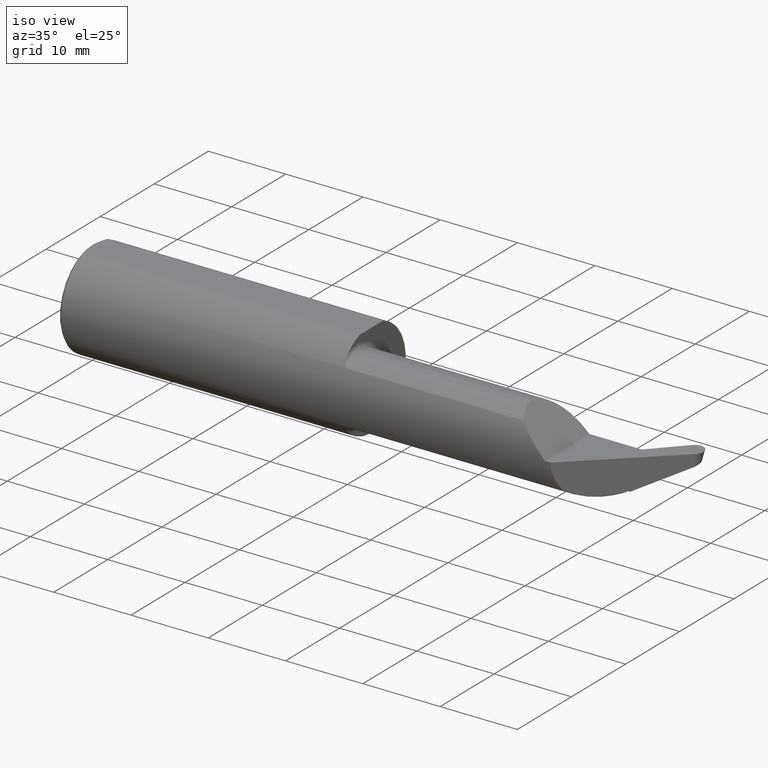
[diagram: clean part render]
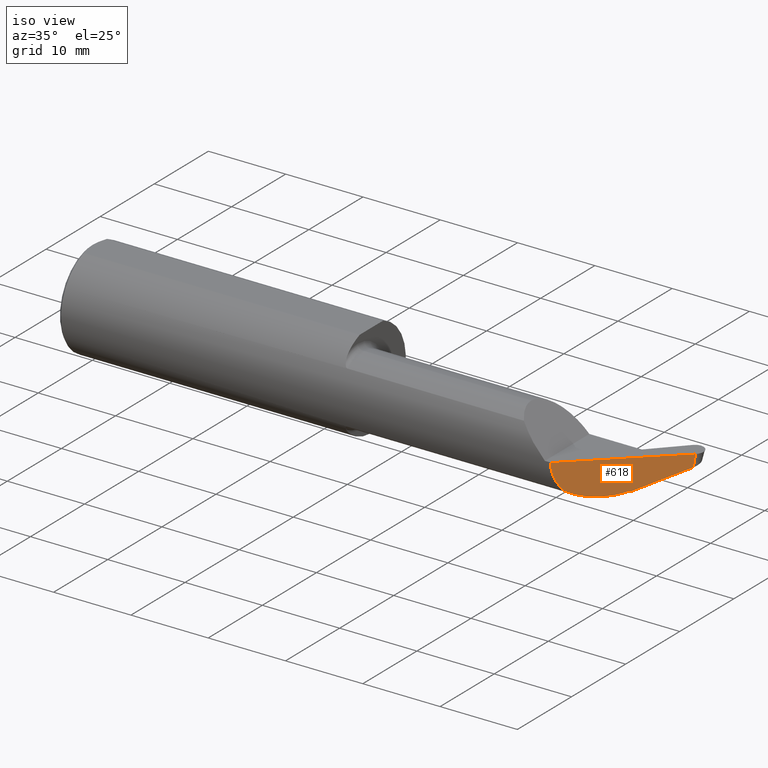
[diagram: same view with one face highlighted and labeled with its STEP entity id]
A machine part, iso view. The second image highlights one B-rep face of the part: STEP entity #618.
In plain terms, the highlighted planar face has unit normal (-0.6816, 0.7309, 0.0349).
Its self-contained STEP definition (entity closure, byte-faithful):
#2 = CARTESIAN_POINT ( 'NONE',  ( 2.508211166450760476, -0.2498500000000000443, -0.04776250763339680988 ) ) ;
#34 = ORIENTED_EDGE ( 'NONE', *, *, #817, .T. ) ;
#43 = EDGE_CURVE ( 'NONE', #307, #499, #77, .T. ) ;
#55 = CARTESIAN_POINT ( 'NONE',  ( 2.747209855509363585, -0.02183442268399109210, -0.1555299639813814694 ) ) ;
#60 = CARTESIAN_POINT ( 'NONE',  ( 2.691783994665847057, -0.07263796445558691472, -0.1739999999999993219 ) ) ;
#77 = B_SPLINE_CURVE_WITH_KNOTS ( 'NONE', 3,
 ( #193, #722, #447, #139 ),
 .UNSPECIFIED., .F., .F.,
 ( 4, 4 ),
 ( 3.126453557828127840E-07, 0.0001706435259610475277 ),
 .UNSPECIFIED. ) ;
#99 = CARTESIAN_POINT ( 'NONE',  ( 2.545554631339530971, -0.2109115923885839516, -0.1339452227446421839 ) ) ;
#104 = PLANE ( 'NONE',  #309 ) ;
#111 = DIRECTION ( 'NONE',  ( -0.7313537016191660189, -0.6819983600625031395, 0.000000000000000000 ) ) ;
#134 = CARTESIAN_POINT ( 'NONE',  ( 2.720501376327327581, -0.04615791066147757749, -0.1677308988258701672 ) ) ;
#139 = CARTESIAN_POINT ( 'NONE',  ( 2.751504638639513445, -0.01768368298314663273, -0.1585832699261198464 ) ) ;
#162 = CARTESIAN_POINT ( 'NONE',  ( 2.913796884223085026, 0.1298489285363519097, -0.07884494127364100047 ) ) ;
#163 = FACE_OUTER_BOUND ( 'NONE', #409, .T. ) ;
#191 = EDGE_CURVE ( 'NONE', #414, #477, #533, .T. ) ;
#193 = CARTESIAN_POINT ( 'NONE',  ( 2.747209855509363585, -0.02183442268399109210, -0.1555299639813814694 ) ) ;
#194 = EDGE_CURVE ( 'NONE', #759, #499, #600, .T. ) ;
#199 = CARTESIAN_POINT ( 'NONE',  ( 2.662602659211939837, -0.09984999999999999432, -0.1739999999999993496 ) ) ;
#215 = ORIENTED_EDGE ( 'NONE', *, *, #43, .T. ) ;
#237 = EDGE_CURVE ( 'NONE', #724, #477, #613, .T. ) ;
#248 = CARTESIAN_POINT ( 'NONE',  ( 2.948155640226707508, 0.1610829347179065230, -0.06196360619533394093 ) ) ;
#253 = ORIENTED_EDGE ( 'NONE', *, *, #194, .F. ) ;
#266 = CARTESIAN_POINT ( 'NONE',  ( 2.662602659211939837, -0.09984999999999999432, -0.1739999999999993496 ) ) ;
#307 = VERTEX_POINT ( 'NONE', #55 ) ;
#309 = AXIS2_PLACEMENT_3D ( 'NONE', #803, #555, #111 ) ;
#320 = CARTESIAN_POINT ( 'NONE',  ( 2.747209855509363585, -0.02183442268399109210, -0.1555299639813814694 ) ) ;
#321 = VECTOR ( 'NONE', #526, 39.37007874015748854 ) ;
#334 = VECTOR ( 'NONE', #469, 39.37007874015748143 ) ;
#382 = VERTEX_POINT ( 'NONE', #199 ) ;
#384 = CARTESIAN_POINT ( 'NONE',  ( 2.578040489233798471, -0.1793692571805432789, -0.1600987644990803094 ) ) ;
#409 = EDGE_LOOP ( 'NONE', ( #253, #780, #497, #462, #34, #735, #215 ) ) ;
#414 = VERTEX_POINT ( 'NONE', #725 ) ;
#419 = CARTESIAN_POINT ( 'NONE',  ( 2.510656778664930311, -0.2498500000000000998, 9.070589041463373428E-17 ) ) ;
#434 = CARTESIAN_POINT ( 'NONE',  ( 2.618662664960786923, -0.1408247075240024737, -0.1739999999999994051 ) ) ;
#436 = CARTESIAN_POINT ( 'NONE',  ( 2.510656778664930311, -0.2498500000000000998, 9.070589041463373428E-17 ) ) ;
#446 = CARTESIAN_POINT ( 'NONE',  ( 2.662602659211939837, -0.09984999999999999432, -0.1739999999999993496 ) ) ;
#447 = CARTESIAN_POINT ( 'NONE',  ( 2.750071417839318855, -0.01906857296610130204, -0.1575698277670850023 ) ) ;
#454 = CARTESIAN_POINT ( 'NONE',  ( 2.950997559189900699, 0.1627468516434981416, -0.04130907079682625410 ) ) ;
#462 = ORIENTED_EDGE ( 'NONE', *, *, #237, .F. ) ;
#469 = DIRECTION ( 'NONE',  ( -0.6954206866754735206, -0.6321757989175361692, -0.3416779592054307590 ) ) ;
#477 = VERTEX_POINT ( 'NONE', #419 ) ;
#497 = ORIENTED_EDGE ( 'NONE', *, *, #191, .T. ) ;
#499 = VERTEX_POINT ( 'NONE', #622 ) ;
#526 = DIRECTION ( 'NONE',  ( -0.7313537016191662410, -0.6819983600625029174, 0.000000000000000000 ) ) ;
#533 = LINE ( 'NONE', #798, #321 ) ;
#552 =( BOUNDED_CURVE ( )  B_SPLINE_CURVE ( 3, ( #446, #60, #134, #320 ),
 .UNSPECIFIED., .F., .T. ) 
 B_SPLINE_CURVE_WITH_KNOTS ( ( 4, 4 ),
 ( 1.523084436873744618, 1.988020202971616746 ),
 .UNSPECIFIED. ) 
 CURVE ( )  GEOMETRIC_REPRESENTATION_ITEM ( )  RATIONAL_B_SPLINE_CURVE ( ( 1.000000000000000000, 0.9820672057869661575, 0.9820672057869661575, 1.000000000000000000 ) ) 
 REPRESENTATION_ITEM ( '' )  );
#555 = DIRECTION ( 'NONE',  ( -0.6815829050885324758, 0.7309081807046557966, 0.03489949670248780611 ) ) ;
#582 = CARTESIAN_POINT ( 'NONE',  ( 2.948155640226707508, 0.1610829347179065230, -0.06196360619533394093 ) ) ;
#587 = CARTESIAN_POINT ( 'NONE',  ( 2.953839478153090781, 0.1644107685690906762, -0.02065453539841306460 ) ) ;
#600 = LINE ( 'NONE', #162, #334 ) ;
#613 =( BOUNDED_CURVE ( )  B_SPLINE_CURVE ( 3, ( #630, #822, #2, #436 ),
 .UNSPECIFIED., .F., .T. ) 
 B_SPLINE_CURVE_WITH_KNOTS ( ( 4, 4 ),
 ( 5.765083885558844656, 6.330897197100739504 ),
 .UNSPECIFIED. ) 
 CURVE ( )  GEOMETRIC_REPRESENTATION_ITEM ( )  RATIONAL_B_SPLINE_CURVE ( ( 1.000000000000000000, 0.9734987392630297665, 0.9734987392630297665, 1.000000000000000000 ) ) 
 REPRESENTATION_ITEM ( '' )  );
#618 = ADVANCED_FACE ( 'NONE', ( #163 ), #104, .F. ) ;
#622 = CARTESIAN_POINT ( 'NONE',  ( 2.751504638639513445, -0.01768368298314663273, -0.1585832699261198464 ) ) ;
#630 = CARTESIAN_POINT ( 'NONE',  ( 2.545554631339530971, -0.2109115923885839516, -0.1339452227446421839 ) ) ;
#642 = CARTESIAN_POINT ( 'NONE',  ( 2.956681397116279975, 0.1660746854946830720, 0.000000000000000000 ) ) ;
#644 = B_SPLINE_CURVE_WITH_KNOTS ( 'NONE', 3,
 ( #248, #454, #587, #642 ),
 .UNSPECIFIED., .F., .F.,
 ( 4, 4 ),
 ( 0.000000000000000000, 1.000000000000000000 ),
 .UNSPECIFIED. ) ;
#716 = CARTESIAN_POINT ( 'NONE',  ( 2.545554631339530971, -0.2109115923885839516, -0.1339452227446421839 ) ) ;
#722 = CARTESIAN_POINT ( 'NONE',  ( 2.748639794056821017, -0.02045217655271347815, -0.1565521373418827522 ) ) ;
#724 = VERTEX_POINT ( 'NONE', #99 ) ;
#725 = CARTESIAN_POINT ( 'NONE',  ( 2.956681397116279975, 0.1660746854946830720, 0.000000000000000000 ) ) ;
#735 = ORIENTED_EDGE ( 'NONE', *, *, #793, .T. ) ;
#759 = VERTEX_POINT ( 'NONE', #582 ) ;
#780 = ORIENTED_EDGE ( 'NONE', *, *, #788, .T. ) ;
#785 =( BOUNDED_CURVE ( )  B_SPLINE_CURVE ( 3, ( #716, #384, #434, #266 ),
 .UNSPECIFIED., .F., .F. ) 
 B_SPLINE_CURVE_WITH_KNOTS ( ( 4, 4 ),
 ( 0.8308160677390028503, 1.523084436873744618 ),
 .UNSPECIFIED. ) 
 CURVE ( )  GEOMETRIC_REPRESENTATION_ITEM ( )  RATIONAL_B_SPLINE_CURVE ( ( 1.000000000000000000, 0.9604608466326332028, 0.9604608466326332028, 1.000000000000000000 ) ) 
 REPRESENTATION_ITEM ( '' )  );
#788 = EDGE_CURVE ( 'NONE', #759, #414, #644, .T. ) ;
#793 = EDGE_CURVE ( 'NONE', #382, #307, #552, .T. ) ;
#798 = CARTESIAN_POINT ( 'NONE',  ( 2.510656778664930311, -0.2498500000000002108, 0.000000000000000000 ) ) ;
#803 = CARTESIAN_POINT ( 'NONE',  ( 3.058187129171008767, 0.2761058268872257360, -0.3220129429052401848 ) ) ;
#817 = EDGE_CURVE ( 'NONE', #724, #382, #785, .T. ) ;
#822 = CARTESIAN_POINT ( 'NONE',  ( 2.520160455226425622, -0.2365171946451299911, -0.09362636526442749685 ) ) ;